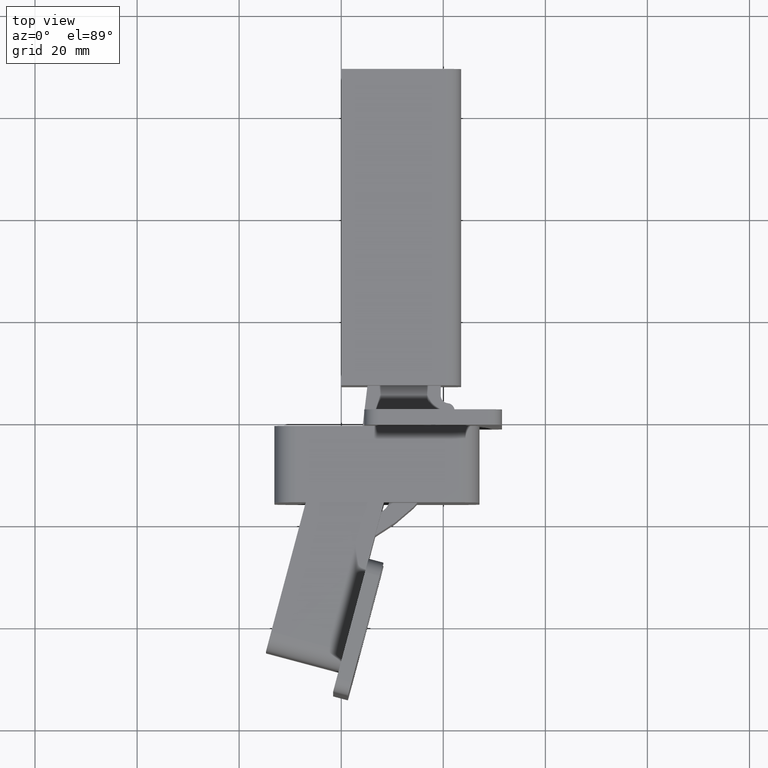
[diagram: clean part render]
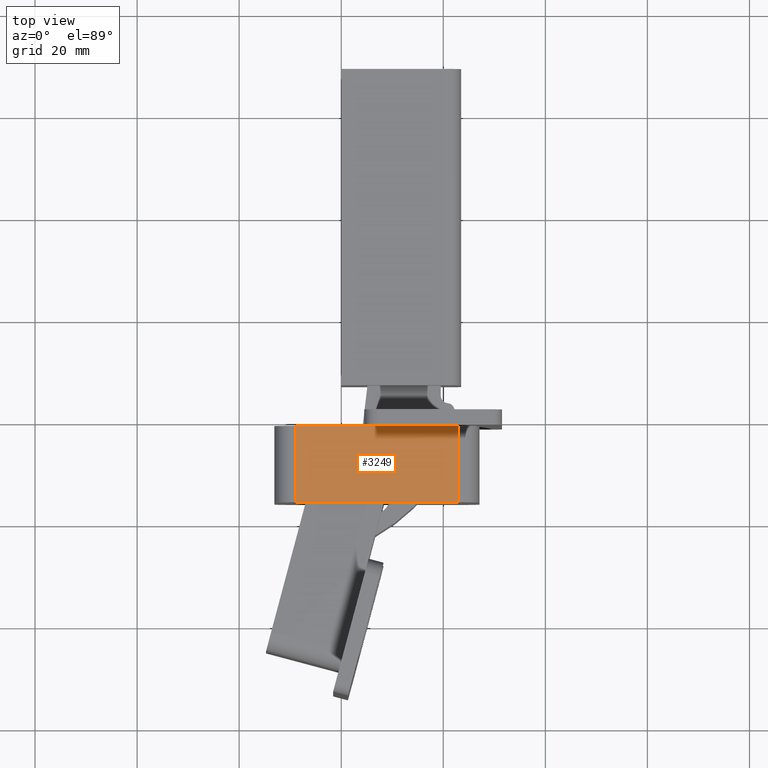
[diagram: same view with one face highlighted and labeled with its STEP entity id]
A machine part, top view. The second image highlights one B-rep face of the part: STEP entity #3249.
In plain terms, the highlighted planar face has unit normal (0, 0, 1).
Its self-contained STEP definition (entity closure, byte-faithful):
#319=FACE_OUTER_BOUND('',#511,.T.);
#511=EDGE_LOOP('',(#2555,#2556,#2557,#2558));
#782=LINE('',#5057,#1130);
#783=LINE('',#5062,#1131);
#784=LINE('',#5065,#1132);
#785=LINE('',#5066,#1133);
#1130=VECTOR('',#4088,1.);
#1131=VECTOR('',#4095,1.);
#1132=VECTOR('',#4098,1.);
#1133=VECTOR('',#4099,1.);
#1459=VERTEX_POINT('',#5054);
#1460=VERTEX_POINT('',#5056);
#1461=VERTEX_POINT('',#5060);
#1462=VERTEX_POINT('',#5064);
#1850=EDGE_CURVE('',#1459,#1460,#782,.T.);
#1853=EDGE_CURVE('',#1460,#1461,#783,.T.);
#1854=EDGE_CURVE('',#1462,#1459,#784,.T.);
#1855=EDGE_CURVE('',#1461,#1462,#785,.T.);
#2555=ORIENTED_EDGE('',*,*,#1853,.F.);
#2556=ORIENTED_EDGE('',*,*,#1850,.F.);
#2557=ORIENTED_EDGE('',*,*,#1854,.F.);
#2558=ORIENTED_EDGE('',*,*,#1855,.F.);
#3102=PLANE('',#3486);
#3249=ADVANCED_FACE('',(#319),#3102,.T.);
#3486=AXIS2_PLACEMENT_3D('',#5063,#4096,#4097);
#4088=DIRECTION('',(-1.,0.,0.));
#4095=DIRECTION('',(-1.48769885299771E-14,1.,0.));
#4096=DIRECTION('center_axis',(0.,0.,1.));
#4097=DIRECTION('ref_axis',(-0.17364817766696,0.984807753012203,0.));
#4098=DIRECTION('',(5.87585535782864E-14,-1.,0.));
#4099=DIRECTION('',(1.,1.8846035843012E-14,0.));
#5054=CARTESIAN_POINT('',(22.9984675821255,-36.0033611097654,15.1000000000121));
#5056=CARTESIAN_POINT('',(-9.00153241787484,-36.0033611097655,15.1000000000121));
#5057=CARTESIAN_POINT('',(-0.620465665740994,-36.0033611097655,15.1000000000121));
#5060=CARTESIAN_POINT('',(-9.00153241787518,-21.0033611097591,15.1000000000121));
#5062=CARTESIAN_POINT('',(-9.00153241787507,-22.8154430439614,15.1000000000121));
#5063=CARTESIAN_POINT('Origin',(-8.47432206880148,-24.6275249781629,15.1000000000121));
#5064=CARTESIAN_POINT('',(22.9984675821247,-21.0033611097585,15.1000000000121));
#5065=CARTESIAN_POINT('',(22.9984675821252,-30.3154430439596,15.1000000000121));
#5066=CARTESIAN_POINT('',(58.4645186030574,-21.0033611097577,15.1000000000121));